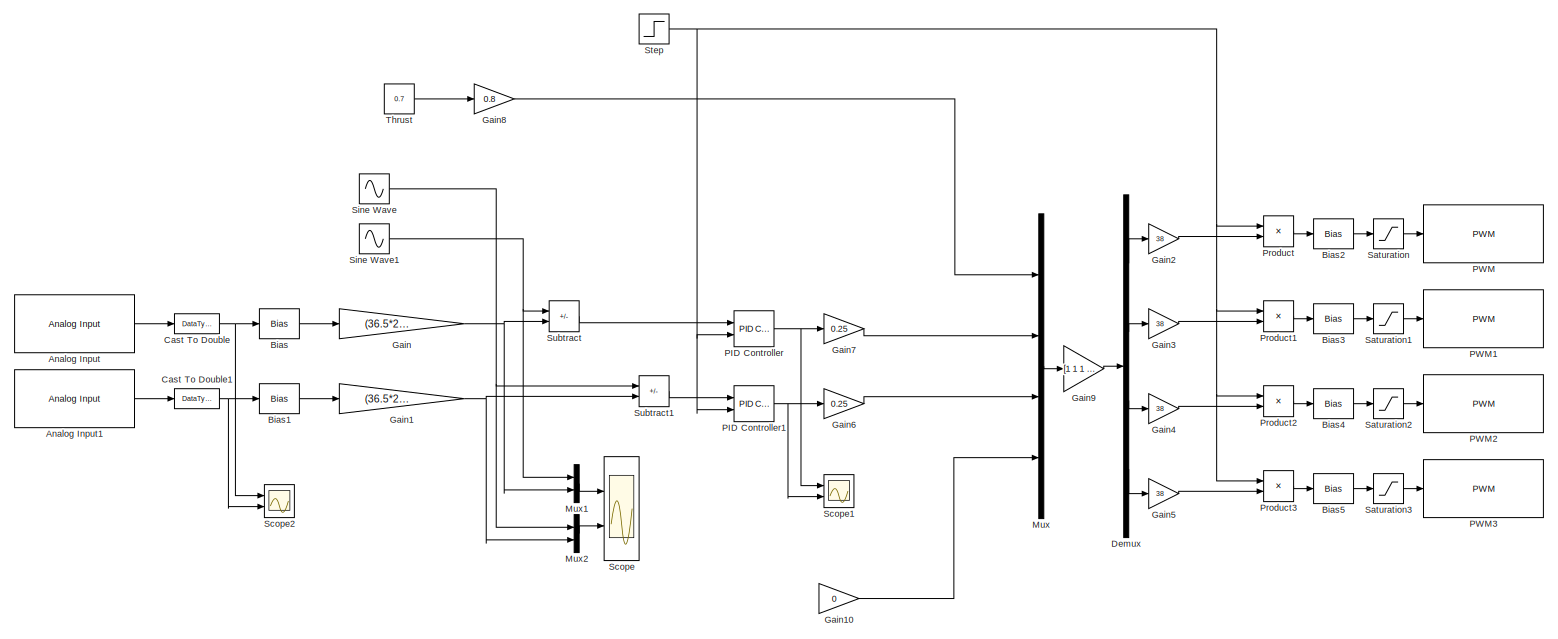
[diagram: root canvas - part 1/1, most of the canvas]
MODEL slx_6512078726f0
KIND model
CONFIG AbsTol = auto
CONFIG EnableMultiTasking = on
CONFIG FixedStep = auto
CONFIG MaxStep = auto
CONFIG MinStep = auto
CONFIG RelTol = 1e-3
CONFIG SampleTimeConstraint = Unconstrained
CONFIG SolverName = ode45
CONFIG StartTime = 0.0
CONFIG StopTime = 10.0
BLOCK [Reference] Analog Input  REF=arduinolib/Analog Input
  Ports = [0, 1]
  SourceBlock = arduinolib/Analog Input
  SourceProductBaseCode = ARDUINO
  SourceType = Arduino Analog Input
BLOCK [Reference] Analog Input1  REF=arduinolib/Analog Input
  Ports = [0, 1]
  SourceBlock = arduinolib/Analog Input
  SourceProductBaseCode = ARDUINO
  SourceType = Arduino Analog Input
BLOCK [Bias] Bias
  Bias = -1164
  SaturateOnIntegerOverflow = off
BLOCK [Bias] Bias1
  Bias = -2918
  SaturateOnIntegerOverflow = off
BLOCK [Bias] Bias2
  Bias = 126
  SaturateOnIntegerOverflow = off
BLOCK [Bias] Bias3
  Bias = 126
  SaturateOnIntegerOverflow = off
BLOCK [Bias] Bias4
  Bias = 126
  SaturateOnIntegerOverflow = off
BLOCK [Bias] Bias5
  Bias = 126
  SaturateOnIntegerOverflow = off
BLOCK [DataTypeConversion] Cast To Double
  OutDataTypeStr = double
  RndMeth = Floor
  SaturateOnIntegerOverflow = off
BLOCK [DataTypeConversion] Cast To Double1
  OutDataTypeStr = double
  RndMeth = Floor
  SaturateOnIntegerOverflow = off
BLOCK [Demux] Demux
  Ports = [1, 4]
BLOCK [Gain] Gain
  Gain = (36.5*2)/2100
BLOCK [Gain] Gain1
  Gain = (36.5*2)/1040
BLOCK [Gain] Gain10
  Gain = 0
BLOCK [Gain] Gain2
  Gain = 38
BLOCK [Gain] Gain3
  Gain = 38
BLOCK [Gain] Gain4
  Gain = 38
BLOCK [Gain] Gain5
  Gain = 38
BLOCK [Gain] Gain6
  Gain = 0.25
BLOCK [Gain] Gain7
  Gain = 0.25
BLOCK [Gain] Gain8
  Gain = 0.8
BLOCK [Gain] Gain9
  Gain = [1 1 1 1;1 1 -1 -1;1 -1 -1 1; 0 0 0 0]'
  Multiplication = Matrix(K*u)
BLOCK [Mux] Mux
  DisplayOption = bar
  Ports = [4, 1]
BLOCK [Mux] Mux1
  DisplayOption = bar
  Inputs = 2
  Ports = [2, 1]
BLOCK [Mux] Mux2
  DisplayOption = bar
  Inputs = 2
  Ports = [2, 1]
BLOCK [Reference] PID Controller  REF=slpidlib/PID Controller
  Ports = [2, 1]
  SourceBlock = slpidlib/PID Controller
  SourceProductBaseCode = SL
  SourceType = PID 1dof
BLOCK [Reference] PID Controller1  REF=slpidlib/PID Controller
  Ports = [2, 1]
  SourceBlock = slpidlib/PID Controller
  SourceProductBaseCode = SL
  SourceType = PID 1dof
BLOCK [Reference] PWM  REF=arduinolib/PWM
  Ports = [1]
  SourceBlock = arduinolib/PWM
  SourceProductBaseCode = ARDUINO
  SourceType = Arduino PWM
BLOCK [Reference] PWM1  REF=arduinolib/PWM
  Ports = [1]
  SourceBlock = arduinolib/PWM
  SourceProductBaseCode = ARDUINO
  SourceType = Arduino PWM
BLOCK [Reference] PWM2  REF=arduinolib/PWM
  Ports = [1]
  SourceBlock = arduinolib/PWM
  SourceProductBaseCode = ARDUINO
  SourceType = Arduino PWM
BLOCK [Reference] PWM3  REF=arduinolib/PWM
  Ports = [1]
  SourceBlock = arduinolib/PWM
  SourceProductBaseCode = ARDUINO
  SourceType = Arduino PWM
BLOCK [Product] Product
  Ports = [2, 1]
BLOCK [Product] Product1
  Ports = [2, 1]
BLOCK [Product] Product2
  Ports = [2, 1]
BLOCK [Product] Product3
  Ports = [2, 1]
BLOCK [Saturate] Saturation
  LowerLimit = 125
  UpperLimit = 165
BLOCK [Saturate] Saturation1
  LowerLimit = 125
  UpperLimit = 165
BLOCK [Saturate] Saturation2
  LowerLimit = 125
  UpperLimit = 165
BLOCK [Saturate] Saturation3
  LowerLimit = 125
  UpperLimit = 165
BLOCK [Scope] Scope
  Floating = off
  NumInputPorts = 2
  Ports = [2]
  ScopeSpecificationString = Simulink.scopes.TimeScopeBlockCfg('CurrentConfiguration', extmgr.ConfigurationSet(extmgr.Configuration('Core','General UI',true),extmgr.Configuration('Core','Source UI',true),extmgr.Configuration('Sources','WiredSimulink',true),extmgr.Configuration('Visuals','Time Domain',true,'SerializedDisplays',{struct('MinYLimReal','-5.79935','MaxYLimReal','16.72411','YLabelReal','','MinYLimMag','0.00000','Max...<+2079ch>
BLOCK [Scope] Scope1
  Floating = off
  NumInputPorts = 2
  Ports = [2]
  ScopeSpecificationString = Simulink.scopes.TimeScopeBlockCfg('CurrentConfiguration', extmgr.ConfigurationSet(extmgr.Configuration('Core','General UI',true),extmgr.Configuration('Core','Source UI',true),extmgr.Configuration('Sources','WiredSimulink',true,'DataLoggingVariableName','ScopeData1'),extmgr.Configuration('Visuals','Time Domain',true,'SerializedDisplays',{struct('MinYLimReal','-6.69761','MaxYLimReal','11.92378','YLa...<+1457ch>
BLOCK [Scope] Scope2
  Floating = off
  NumInputPorts = 2
  Ports = [2]
  ScopeSpecificationString = Simulink.scopes.TimeScopeBlockCfg('CurrentConfiguration', extmgr.ConfigurationSet(extmgr.Configuration('Core','General UI',true),extmgr.Configuration('Core','Source UI',true),extmgr.Configuration('Sources','WiredSimulink',true,'DataLoggingVariableName','ScopeData1'),extmgr.Configuration('Visuals','Time Domain',true,'SerializedDisplays',{struct('MinYLimReal','0','MaxYLimReal','3500','YLabelReal',''...<+1480ch>
BLOCK [Sin] Sine Wave
  Amplitude = 0
  Frequency = 0.2
  Ports = [0, 1]
  SampleTime = 1/500
BLOCK [Sin] Sine Wave1
  Amplitude = 0
  Frequency = 0.2
  Phase = pi
  Ports = [0, 1]
  SampleTime = 1/500
BLOCK [Step] Step
  SampleTime = 1/500
  Time = 5
BLOCK [Sum] Subtract
  IconShape = rectangular
  Inputs = +-
  Ports = [2, 1]
BLOCK [Sum] Subtract1
  IconShape = rectangular
  Inputs = +-
  Ports = [2, 1]
BLOCK [Constant] Thrust
  SampleTime = 1/500
  Value = 0.7
LINE Analog Input1:1 -> Cast To Double1:1
LINE Analog Input:1 -> Cast To Double:1
LINE Bias1:1 -> Gain1:1
LINE Bias2:1 -> Saturation:1
LINE Bias3:1 -> Saturation1:1
LINE Bias4:1 -> Saturation2:1
LINE Bias5:1 -> Saturation3:1
LINE Bias:1 -> Gain:1
NET Cast To Double1:1 -> Bias1:1, Scope2:2
NET Cast To Double:1 -> Bias:1, Scope2:1
LINE Demux:1 -> Gain2:1
LINE Demux:2 -> Gain3:1
LINE Demux:3 -> Gain4:1
LINE Demux:4 -> Gain5:1
LINE Gain10:1 -> Mux:4
NET Gain1:1 -> Mux2:2, Subtract1:2
LINE Gain2:1 -> Product:2
LINE Gain3:1 -> Product1:2
LINE Gain4:1 -> Product2:2
LINE Gain5:1 -> Product3:2
LINE Gain6:1 -> Mux:3
LINE Gain7:1 -> Mux:2
LINE Gain8:1 -> Mux:1
LINE Gain9:1 -> Demux:1
NET Gain:1 -> Mux1:2, Subtract:2
LINE Mux1:1 -> Scope:1
LINE Mux2:1 -> Scope:2
LINE Mux:1 -> Gain9:1
NET PID Controller1:1 -> Gain6:1, Scope1:2
NET PID Controller:1 -> Gain7:1, Scope1:1
LINE Product1:1 -> Bias3:1
LINE Product2:1 -> Bias4:1
LINE Product3:1 -> Bias5:1
LINE Product:1 -> Bias2:1
LINE Saturation1:1 -> PWM1:1
LINE Saturation2:1 -> PWM2:1
LINE Saturation3:1 -> PWM3:1
LINE Saturation:1 -> PWM:1
NET Sine Wave1:1 -> Mux1:1, Subtract:1
NET Sine Wave:1 -> Mux2:1, Subtract1:1
NET Step:1 -> PID Controller1:2, PID Controller:2, Product1:1, Product2:1, Product3:1, Product:1
LINE Subtract1:1 -> PID Controller1:1
LINE Subtract:1 -> PID Controller:1
LINE Thrust:1 -> Gain8:1
note: NET lines group one-source signal fan-out (src -> all destinations, sorted); 1:1 wires keep LINE
